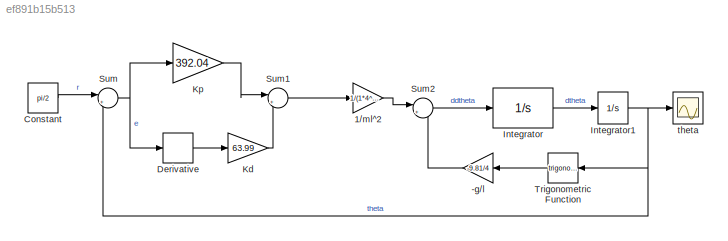
MODEL slx_ef891b15b513
KIND model
CONFIG AbsTol = auto
CONFIG EnableMultiTasking = off
CONFIG FixedStep = auto
CONFIG MaxStep = auto
CONFIG MinStep = auto
CONFIG RelTol = 1e-3
CONFIG SampleTimeConstraint = Unconstrained
CONFIG SolverName = VariableStepAuto
CONFIG StartTime = 0.0
CONFIG StopTime = 10.0
BLOCK [Gain] -g//l
  Gain = -9.81/4
BLOCK [Gain] 1//ml^2
  Gain = 1/(1*4^2)
BLOCK [Constant] Constant
  Value = pi/2
BLOCK [Derivative] Derivative
BLOCK [Integrator] Integrator
  Ports = [1, 1]
BLOCK [Integrator] Integrator1
  InitialCondition = pi/4
  Ports = [1, 1]
BLOCK [Gain] Kd
  Gain = 63.99
BLOCK [Gain] Kp
  Gain = 392.04
BLOCK [Sum] Sum
  Inputs = |+-
  Ports = [2, 1]
BLOCK [Sum] Sum1
  Inputs = |++
  Ports = [2, 1]
BLOCK [Sum] Sum2
  Inputs = |++
  Ports = [2, 1]
BLOCK [Trigonometry] Trigonometric Function
  Ports = [1, 1]
BLOCK [Scope] theta
  Floating = off
  NumInputPorts = 1
  Ports = [1]
  ScopeSpecificationString = Simulink.scopes.TimeScopeBlockCfg('CurrentConfiguration', extmgr.ConfigurationSet(extmgr.Configuration('Core','General UI',true),extmgr.Configuration('Core','Source UI',true),extmgr.Configuration('Sources','WiredSimulink',true),extmgr.Configuration('Visuals','Time Domain',true,'SerializedDisplays',{struct('MinYLimReal','0.68093','MaxYLimReal','1.72564','YLabelReal','','MinYLimMag','0.68093','MaxYL...<+1424ch>
LINE -g//l:1 -> Sum2:2
LINE 1//ml^2:1 -> Sum2:1
LINE Constant:1 -> Sum:1
LINE Derivative:1 -> Kd:1
NET Integrator1:1 -> Sum:2, Trigonometric Function:1, theta:1
LINE Integrator:1 -> Integrator1:1
LINE Kd:1 -> Sum1:2
LINE Kp:1 -> Sum1:1
LINE Sum1:1 -> 1//ml^2:1
LINE Sum2:1 -> Integrator:1
NET Sum:1 -> Derivative:1, Kp:1
LINE Trigonometric Function:1 -> -g//l:1
note: NET lines group one-source signal fan-out (src -> all destinations, sorted); 1:1 wires keep LINE
